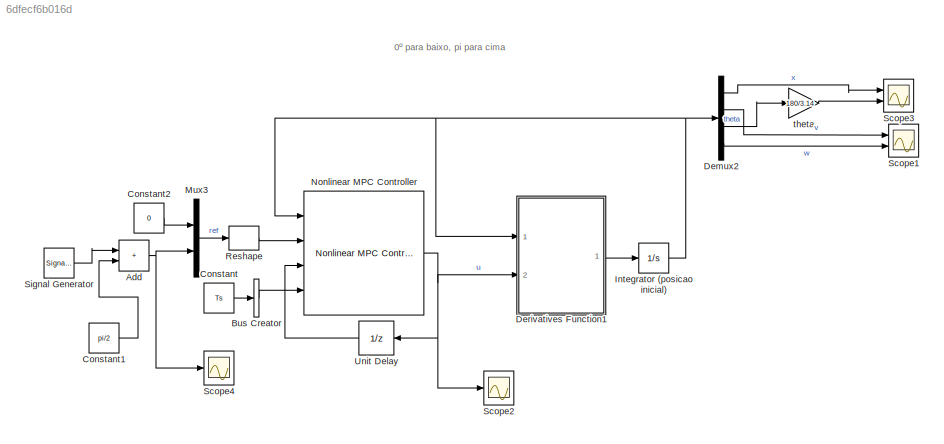
MODEL slx_6dfecf6b016d
KIND model
CONFIG AbsTol = auto
CONFIG EnableMultiTasking = off
CONFIG FixedStep = auto
CONFIG MaxStep = auto
CONFIG MinStep = auto
CONFIG RelTol = 1e-3
CONFIG SampleTimeConstraint = Unconstrained
CONFIG Solver = VariableStepAuto
CONFIG SolverName = VariableStepAuto
CONFIG StartTime = 0.0
CONFIG StopTime = 60
BLOCK [Sum] Add
  IconShape = rectangular
  Ports = [2, 1]
BLOCK [BusCreator] Bus Creator
  DisplayOption = bar
  InheritFromInputs = off
  Inputs = 1
  NonVirtualBus = on
  OutDataTypeStr = Bus: BusNMPC
  Ports = [1, 1]
BLOCK [Constant] Constant
  Value = Ts
BLOCK [Constant] Constant1
  Value = pi/2
BLOCK [Constant] Constant2
  Value = 0
BLOCK [Demux] Demux2
  Ports = [1, 4]
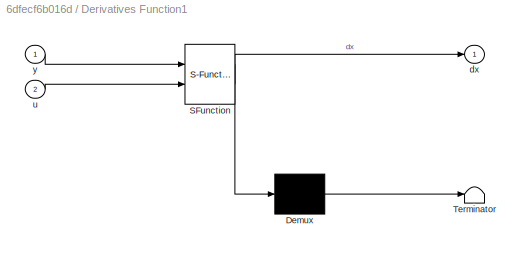
BLOCK [SubSystem] Derivatives Function1
  ErrorFcn = Stateflow.Translate.translate
  PermitHierarchicalResolution = ExplicitOnly
  Ports = [2, 1]
  RequestExecContextInheritance = off
  SFBlockType = MATLAB Function
  TreatAsAtomicUnit = on
BLOCK [Demux] Derivatives Function1/ Demux 
  Outputs = 1
  Ports = [1, 1]
BLOCK [S-Function] Derivatives Function1/ SFunction 
  EnableBusSupport = on
  FunctionName = sf_sfun
  Parameters = K,L,M,d,g,m
  PortCounts = [2 2]
  Ports = [2, 2]
  SFcnIsStateOwnerBlock = off
  SFunctionDeploymentMode = off
  Tag = Stateflow S-Function 3
BLOCK [Terminator] Derivatives Function1/ Terminator 
BLOCK [Outport] Derivatives Function1/dx
  VectorParamsAs1DForOutWhenUnconnected = off
BLOCK [Inport] Derivatives Function1/u
  Port = 2
BLOCK [Inport] Derivatives Function1/y
BLOCK [Integrator] Integrator (posicao inicial)
  InitialCondition = [0;0;0;0]
  Ports = [1, 1]
BLOCK [Mux] Mux3
  DisplayOption = bar
  Inputs = 2
  Ports = [2, 1]
BLOCK [Reference] Nonlinear MPC Controller  REF=mpclib/Nonlinear MPC Controller  (lib defined in mdl_ae329e0e0455)
  Ports = [4, 1]
  SCDEnableBlockLinearizationSpecification = on
  SourceBlock = mpclib/Nonlinear MPC Controller
  SourceProductBaseCode = MP
  SourceType = NonlinearMPC
BLOCK [Reshape] Reshape
  OutputDimensionality = Row vector (2-D)
  Ports = [1, 1]
BLOCK [Scope] Scope1
  Floating = off
  NumInputPorts = 2
  Ports = [2]
  ScopeSpecificationString = Simulink.scopes.TimeScopeBlockCfg('CurrentConfiguration', extmgr.ConfigurationSet(extmgr.Configuration('Core','General UI',true),extmgr.Configuration('Core','Source UI',true),extmgr.Configuration('Sources','WiredSimulink',true,'DataLoggingVariableName','ScopeData1'),extmgr.Configuration('Visuals','Time Domain',true,'SerializedDisplays',{struct('MinYLimReal','-1.09114','MaxYLimReal','1.10998','YLab...<+2019ch>
BLOCK [Scope] Scope2
  Floating = off
  NumInputPorts = 1
  Ports = [1]
  ScopeSpecificationString = Simulink.scopes.TimeScopeBlockCfg('CurrentConfiguration', extmgr.ConfigurationSet(extmgr.Configuration('Core','General UI',true),extmgr.Configuration('Core','Source UI',true),extmgr.Configuration('Sources','WiredSimulink',true,'DataLoggingVariableName','ScopeData2'),extmgr.Configuration('Visuals','Time Domain',true,'SerializedDisplays',{struct('MinYLimReal','-0.10157','MaxYLimReal','0.15443','YLab...<+1488ch>
BLOCK [Scope] Scope3
  Floating = off
  NumInputPorts = 2
  Ports = [2]
  ScopeSpecificationString = Simulink.scopes.TimeScopeBlockCfg('CurrentConfiguration', extmgr.ConfigurationSet(extmgr.Configuration('Core','General UI',true),extmgr.Configuration('Core','Source UI',true),extmgr.Configuration('Sources','WiredSimulink',true,'DataLoggingVariableName','ScopeData3'),extmgr.Configuration('Visuals','Time Domain',true,'SerializedDisplays',{struct('MinYLimReal','-0.14417','MaxYLimReal','0.07987','YLab...<+2026ch>
BLOCK [Scope] Scope4
  Floating = off
  NumInputPorts = 1
  Ports = [1]
  ScopeSpecificationString = Simulink.scopes.TimeScopeBlockCfg('CurrentConfiguration', extmgr.ConfigurationSet(extmgr.Configuration('Core','General UI',true),extmgr.Configuration('Core','Source UI',true),extmgr.Configuration('Sources','WiredSimulink',true),extmgr.Configuration('Visuals','Time Domain',true,'SerializedDisplays',{struct('MinYLimReal','-0.3927','MaxYLimReal','3.53429','YLabelReal','','MinYLimMag','0.00000','MaxYL...<+1447ch>
BLOCK [SignalGenerator] Signal Generator
  Amplitude = pi/2
  Frequency = 0.05
  Ports = [0, 1]
  WaveForm = square
BLOCK [UnitDelay] Unit Delay
  HasFrameUpgradeWarning = on
  NameLocation = top
  SampleTime = -1
BLOCK [Gain] theta
  Gain = 180/3.14
ANNOTATION (root): 0º para baixo, pi para cima
NET Add:1 -> Mux3:2, Scope4:1
LINE Bus Creator:1 -> Nonlinear MPC Controller:4
LINE Constant1:1 -> Add:2
LINE Constant2:1 -> Mux3:1
LINE Constant:1 -> Bus Creator:1
LINE Demux2:1 -> Scope3:1
LINE Demux2:2 -> Scope1:1
LINE Demux2:3 -> theta:1
LINE Demux2:4 -> Scope1:2
LINE Derivatives Function1:1 -> Integrator (posicao inicial):1
NET Integrator (posicao inicial):1 -> Demux2:1, Derivatives Function1:1, Nonlinear MPC Controller:1
LINE Mux3:1 -> Reshape:1
NET Nonlinear MPC Controller:1 -> Derivatives Function1:2, Scope2:1, Unit Delay:1
LINE Reshape:1 -> Nonlinear MPC Controller:2
LINE Signal Generator:1 -> Add:1
LINE Unit Delay:1 -> Nonlinear MPC Controller:3
LINE theta:1 -> Scope3:2
note: NET lines group one-source signal fan-out (src -> all destinations, sorted); 1:1 wires keep LINE
CHART Derivatives Function1 states=1 transitions=1
  STATE_LABEL 'eML_blk_kernel()'
  STATE_LABEL 'SCRIPT:\nfunction dx = derivativesexp(y,m, M, L, g, d, K,u)\n% y = [x , ^x, o , ^o] states , y=xdot\n% M massa do carro, m massa do pendulo, L tamanho do fio\n% d fricçao, g grav no pendulo\n\ndx=0*y;\ndx=pendcont(y,u);\n\n% Sy = sin(y(3));\n% Cy = cos(y(3));\n% D = m*L*L*(M+m*(1-Cy^2));\n\n% setpoints\n% newx = [2; 0; pi; 0];\n% newx = [0; 0; 0; 0];\n% \n% % if(t>12)\n% %     newx = [-1; 0; pi; 0]; \n% % end \n% \n%...<+935ch>'
CHART  states=0 transitions=0
